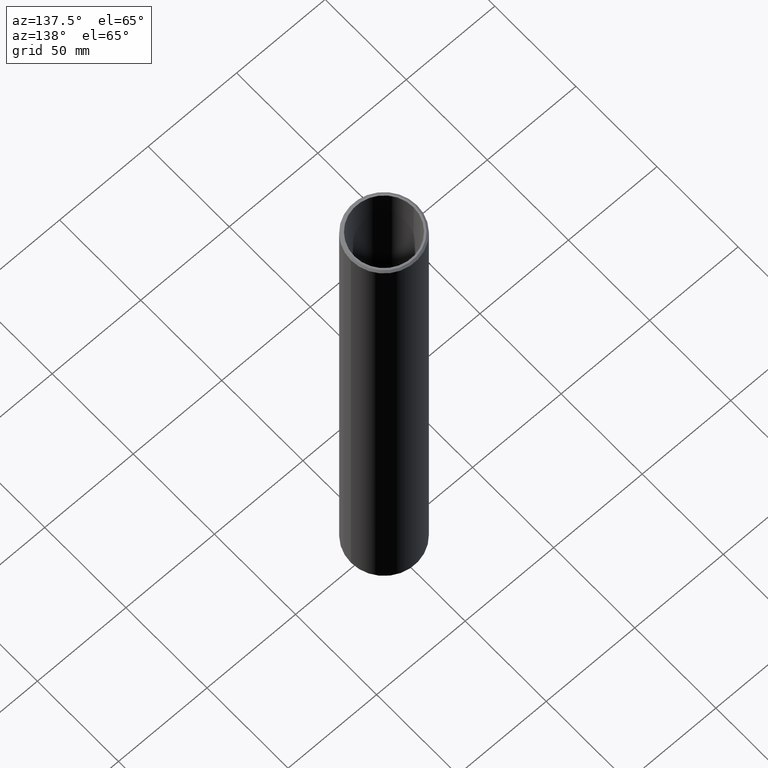
[diagram: clean part render]
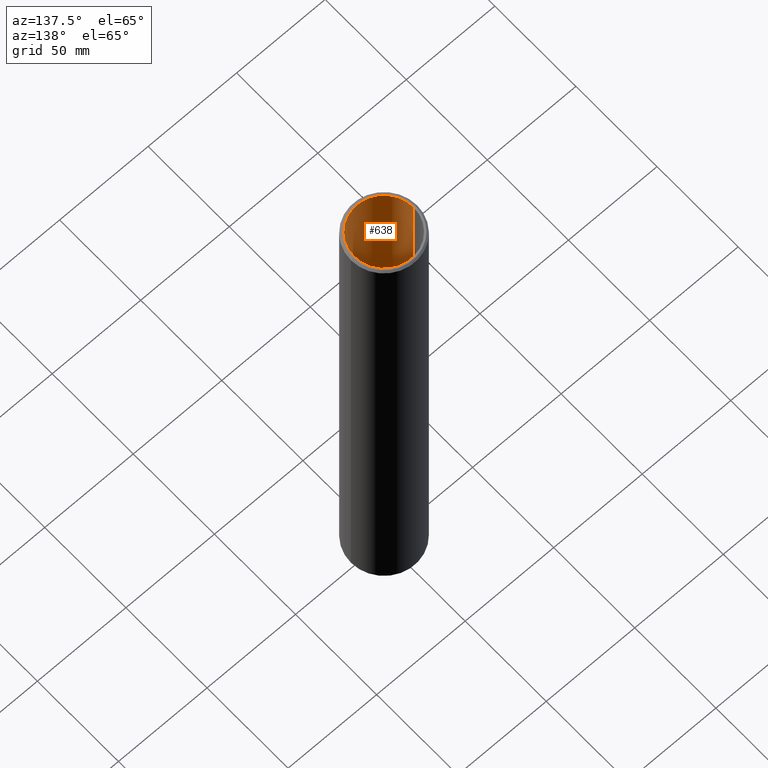
[diagram: same view with one face highlighted and labeled with its STEP entity id]
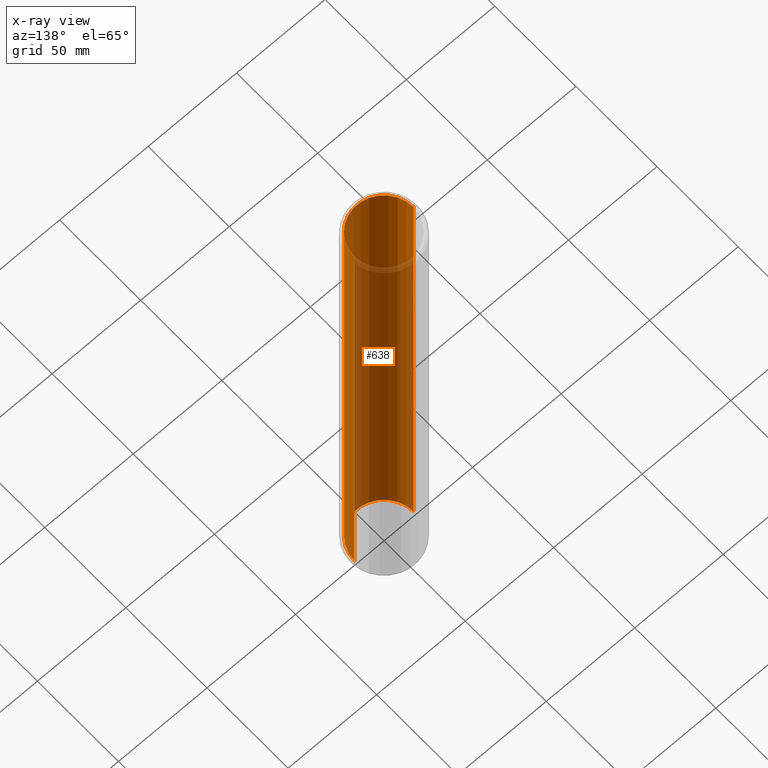
[diagram: x-ray of the same camera — body ghosted, the highlighted face saturated]
A machine part, auxiliary view. The second image highlights one B-rep face of the part: STEP entity #638.
The next image is the same camera in x-ray: the body ghosted, the highlighted face saturated — about 66% of this face is hidden behind the body in this view.
In plain terms, the highlighted cylindrical surface (partial cylindrical patch) has radius 16.7 mm, axis along (-0, -0, -1).
Its self-contained STEP definition (entity closure, byte-faithful):
#96 = LINE ( 'NONE', #5789, #12903 ) ;
#134 = EDGE_CURVE ( 'NONE', #845, #4097, #14150, .T. ) ;
#141 = VERTEX_POINT ( 'NONE', #3161 ) ;
#172 = CARTESIAN_POINT ( 'NONE',  ( -16.69999999999999900, -6.751536568721681500E-013, 1.473697182983843700 ) ) ;
#182 = EDGE_CURVE ( 'NONE', #1241, #14914, #5805, .T. ) ;
#189 = CARTESIAN_POINT ( 'NONE',  ( -16.69999999999999900, 0.0000000000000000000, 150.0000000000000000 ) ) ;
#205 = VERTEX_POINT ( 'NONE', #15674 ) ;
#212 = VERTEX_POINT ( 'NONE', #3433 ) ;
#222 = VERTEX_POINT ( 'NONE', #14367 ) ;
#251 = ORIENTED_EDGE ( 'NONE', *, *, #13809, .T. ) ;
#274 = VECTOR ( 'NONE', #8192, 1000.000000000000000 ) ;
#286 = CARTESIAN_POINT ( 'NONE',  ( -16.69999999999999900, 0.0000000000000000000, -2.925681089743548100 ) ) ;
#288 = ORIENTED_EDGE ( 'NONE', *, *, #11680, .T. ) ;
#292 = ORIENTED_EDGE ( 'NONE', *, *, #13453, .F. ) ;
#320 = B_SPLINE_CURVE_WITH_KNOTS ( 'NONE', 3,
 ( #6637, #6751, #4278, #6844 ),
 .UNSPECIFIED., .F., .F.,
 ( 4, 4 ),
 ( 0.0000000000000000000, 0.0001645194101132988000 ),
 .UNSPECIFIED. ) ;
#330 = VECTOR ( 'NONE', #12127, 1000.000000000000000 ) ;
#457 = VERTEX_POINT ( 'NONE', #3747 ) ;
#531 = DIRECTION ( 'NONE',  ( 0.0000000000000000000, 0.0000000000000000000, 1.000000000000000000 ) ) ;
#551 = CARTESIAN_POINT ( 'NONE',  ( -16.69996745311371500, -0.03298397858652268200, -0.6666851855487946300 ) ) ;
#584 = EDGE_CURVE ( 'NONE', #9750, #4725, #9059, .T. ) ;
#601 = B_SPLINE_CURVE_WITH_KNOTS ( 'NONE', 3,
 ( #11094, #4040, #5516, #1931 ),
 .UNSPECIFIED., .F., .F.,
 ( 4, 4 ),
 ( 0.0004003679278568054400, 0.0005426838302378694100 ),
 .UNSPECIFIED. ) ;
#625 = DIRECTION ( 'NONE',  ( 0.0000000000000000000, 0.0000000000000000000, 1.000000000000000000 ) ) ;
#636 = CARTESIAN_POINT ( 'NONE',  ( 0.0000000000000000000, 0.0000000000000000000, 150.0000000000000000 ) ) ;
#638 = ADVANCED_FACE ( 'NONE', ( #13354 ), #5518, .F. ) ;
#667 = EDGE_CURVE ( 'NONE', #14863, #8990, #15142, .T. ) ;
#707 = B_SPLINE_CURVE_WITH_KNOTS ( 'NONE', 3,
 ( #7917, #8014, #5425, #14260 ),
 .UNSPECIFIED., .F., .F.,
 ( 4, 4 ),
 ( 0.0007601544001610206100, 0.0009231642194032676600 ),
 .UNSPECIFIED. ) ;
#713 = DIRECTION ( 'NONE',  ( -0.0000000000000000000, -0.0000000000000000000, -1.000000000000000000 ) ) ;
#721 = B_SPLINE_CURVE_WITH_KNOTS ( 'NONE', 3,
 ( #8431, #12320, #8680, #2483 ),
 .UNSPECIFIED., .F., .F.,
 ( 4, 4 ),
 ( 0.0007601544001609855900, 0.0009231642194032195200 ),
 .UNSPECIFIED. ) ;
#724 = CARTESIAN_POINT ( 'NONE',  ( -16.69999999999999900, -9.698527246061738900E-017, -5.564657833323095400 ) ) ;
#778 = VERTEX_POINT ( 'NONE', #4611 ) ;
#807 = CARTESIAN_POINT ( 'NONE',  ( -16.69999999999998900, -0.02343688019446897200, 2.467734027492296500 ) ) ;
#842 = DIRECTION ( 'NONE',  ( -0.0000000000000000000, -0.0000000000000000000, -1.000000000000000000 ) ) ;
#845 = VERTEX_POINT ( 'NONE', #7348 ) ;
#862 = ORIENTED_EDGE ( 'NONE', *, *, #7933, .F. ) ;
#938 = CARTESIAN_POINT ( 'NONE',  ( -16.70000000000000600, -0.01193490576684025700, 10.86233208407259300 ) ) ;
#1011 = EDGE_CURVE ( 'NONE', #8106, #2994, #8072, .T. ) ;
#1013 = CARTESIAN_POINT ( 'NONE',  ( -16.70000000000000600, 9.825582188149885200E-017, 2.165595087786008000 ) ) ;
#1093 = VERTEX_POINT ( 'NONE', #8437 ) ;
#1137 = EDGE_CURVE ( 'NONE', #457, #11837, #1323, .T. ) ;
#1147 = CARTESIAN_POINT ( 'NONE',  ( -16.69999999999999900, 0.0000000000000000000, 5.317107371794915800 ) ) ;
#1169 = LINE ( 'NONE', #10265, #5246 ) ;
#1170 = VERTEX_POINT ( 'NONE', #9619 ) ;
#1204 = ORIENTED_EDGE ( 'NONE', *, *, #14542, .T. ) ;
#1221 = ORIENTED_EDGE ( 'NONE', *, *, #1011, .T. ) ;
#1241 = VERTEX_POINT ( 'NONE', #15798 ) ;
#1262 = VECTOR ( 'NONE', #9551, 1000.000000000000000 ) ;
#1301 = EDGE_CURVE ( 'NONE', #11919, #11891, #2074, .T. ) ;
#1308 = EDGE_CURVE ( 'NONE', #6605, #10942, #6571, .T. ) ;
#1323 = B_SPLINE_CURVE_WITH_KNOTS ( 'NONE', 3,
 ( #2197, #14638, #7385, #12362 ),
 .UNSPECIFIED., .F., .F.,
 ( 4, 4 ),
 ( 0.0003122497290092718000, 0.0004517219821183873600 ),
 .UNSPECIFIED. ) ;
#1377 = CARTESIAN_POINT ( 'NONE',  ( -16.69999249357679400, -0.01587137687383443800, 6.174043061983315500 ) ) ;
#1398 = CARTESIAN_POINT ( 'NONE',  ( -16.69999999999998900, -4.735020054269944400E-014, 6.082844359307565600 ) ) ;
#1416 = CARTESIAN_POINT ( 'NONE',  ( -16.69999999999999900, 0.0000000000000000000, 150.0000000000000000 ) ) ;
#1476 = VERTEX_POINT ( 'NONE', #11943 ) ;
#1493 = EDGE_CURVE ( 'NONE', #2224, #12960, #15300, .T. ) ;
#1526 = CARTESIAN_POINT ( 'NONE',  ( -16.69999999999999900, 0.0000000000000000000, 7.080996260683802400 ) ) ;
#1549 = CARTESIAN_POINT ( 'NONE',  ( -16.69996554995901800, -0.03392094017094016800, -5.403234758947636600 ) ) ;
#1604 = CARTESIAN_POINT ( 'NONE',  ( -16.69999999999999900, 0.0000000000000000000, -150.0000000000000000 ) ) ;
#1654 = VECTOR ( 'NONE', #4181, 1000.000000000000000 ) ;
#1655 = CARTESIAN_POINT ( 'NONE',  ( -16.69999138749641800, -0.01696047008547008800, 10.76698342347756200 ) ) ;
#1676 = LINE ( 'NONE', #4029, #14873 ) ;
#1681 = ORIENTED_EDGE ( 'NONE', *, *, #9485, .T. ) ;
#1718 = CARTESIAN_POINT ( 'NONE',  ( -16.70000000000000600, 9.825582188149885200E-017, 2.165595087786008000 ) ) ;
#1726 = VECTOR ( 'NONE', #7501, 1000.000000000000000 ) ;
#1731 = EDGE_CURVE ( 'NONE', #12122, #1093, #13524, .T. ) ;
#1817 = EDGE_CURVE ( 'NONE', #12572, #9779, #8664, .T. ) ;
#1823 = CARTESIAN_POINT ( 'NONE',  ( -16.69999999999999900, 0.0000000000000000000, 150.0000000000000000 ) ) ;
#1865 = DIRECTION ( 'NONE',  ( 0.0000000000000000000, 0.0000000000000000000, 1.000000000000000000 ) ) ;
#1914 = EDGE_CURVE ( 'NONE', #11644, #1170, #12361, .T. ) ;
#1931 = CARTESIAN_POINT ( 'NONE',  ( -16.69999138749641800, -0.01696047008547008800, 10.76698342347756200 ) ) ;
#2012 = VERTEX_POINT ( 'NONE', #12635 ) ;
#2032 = ORIENTED_EDGE ( 'NONE', *, *, #10142, .F. ) ;
#2074 = LINE ( 'NONE', #7538, #10040 ) ;
#2090 = VECTOR ( 'NONE', #842, 1000.000000000000000 ) ;
#2133 = EDGE_CURVE ( 'NONE', #15490, #15474, #6687, .T. ) ;
#2138 = CARTESIAN_POINT ( 'NONE',  ( -16.69999999999999900, 0.0000000000000000000, 150.0000000000000000 ) ) ;
#2197 = CARTESIAN_POINT ( 'NONE',  ( -16.70000000000000600, -4.681678154416606800E-014, 9.050926624264814500 ) ) ;
#2202 = CARTESIAN_POINT ( 'NONE',  ( -16.69999999999999200, 7.857620566850080000E-012, 10.90823966026532500 ) ) ;
#2219 = CARTESIAN_POINT ( 'NONE',  ( -16.69996554995901800, -0.03392094017094016800, -9.676213191105770100 ) ) ;
#2224 = VERTEX_POINT ( 'NONE', #14623 ) ;
#2234 = CARTESIAN_POINT ( 'NONE',  ( -16.69999999999999900, 0.0000000000000000000, 150.0000000000000000 ) ) ;
#2249 = B_SPLINE_CURVE_WITH_KNOTS ( 'NONE', 3,
 ( #14044, #8943, #2740, #6631 ),
 .UNSPECIFIED., .F., .F.,
 ( 4, 4 ),
 ( 0.0005409006475432117300, 0.0007297867420576923700 ),
 .UNSPECIFIED. ) ;
#2341 = CARTESIAN_POINT ( 'NONE',  ( -16.69999999999998900, -0.02342405405018298900, 2.224729526629875700 ) ) ;
#2432 = ORIENTED_EDGE ( 'NONE', *, *, #8529, .T. ) ;
#2448 = VERTEX_POINT ( 'NONE', #9189 ) ;
#2473 = VECTOR ( 'NONE', #531, 1000.000000000000000 ) ;
#2483 = CARTESIAN_POINT ( 'NONE',  ( -16.69996554995901800, -0.03392094017094016800, 1.313111394898589100 ) ) ;
#2555 = ORIENTED_EDGE ( 'NONE', *, *, #8899, .T. ) ;
#2582 = ORIENTED_EDGE ( 'NONE', *, *, #12365, .F. ) ;
#2614 = CIRCLE ( 'NONE', #4437, 16.69999999999999900 ) ;
#2636 = LINE ( 'NONE', #7459, #8429 ) ;
#2643 = ORIENTED_EDGE ( 'NONE', *, *, #15525, .T. ) ;
#2647 = CARTESIAN_POINT ( 'NONE',  ( -16.69996554995901800, -0.03392094017094016800, 1.313111394898589100 ) ) ;
#2667 = VECTOR ( 'NONE', #7904, 1000.000000000000000 ) ;
#2740 = CARTESIAN_POINT ( 'NONE',  ( -16.69996672781216400, -0.03334105922174618300, -8.091340870103234600 ) ) ;
#2809 = CARTESIAN_POINT ( 'NONE',  ( -16.69999999999999900, 0.0000000000000000000, 7.623731303418840500 ) ) ;
#2812 = VERTEX_POINT ( 'NONE', #724 ) ;
#2863 = B_SPLINE_CURVE_WITH_KNOTS ( 'NONE', 3,
 ( #9494, #10890, #10788, #11988 ),
 .UNSPECIFIED., .F., .F.,
 ( 4, 4 ),
 ( 0.0000000000000000000, 0.0001354148056495601800 ),
 .UNSPECIFIED. ) ;
#2911 = CARTESIAN_POINT ( 'NONE',  ( -16.69996554995901800, -0.03392094017094017500, -8.027337489983974500 ) ) ;
#2994 = VERTEX_POINT ( 'NONE', #6850 ) ;
#3031 = CARTESIAN_POINT ( 'NONE',  ( -16.69999999999999900, 0.0000000000000000000, 150.0000000000000000 ) ) ;
#3064 = DIRECTION ( 'NONE',  ( -0.0000000000000000000, -0.0000000000000000000, -1.000000000000000000 ) ) ;
#3088 = EDGE_CURVE ( 'NONE', #13908, #4097, #7664, .T. ) ;
#3117 = CARTESIAN_POINT ( 'NONE',  ( -16.69999999999999900, 5.548530190328999400E-012, 6.355246872870711000 ) ) ;
#3161 = CARTESIAN_POINT ( 'NONE',  ( -16.69996554995901800, -0.03392094017094016800, -10.69490142561432800 ) ) ;
#3183 = VERTEX_POINT ( 'NONE', #14053 ) ;
#3194 = ORIENTED_EDGE ( 'NONE', *, *, #11034, .F. ) ;
#3201 = EDGE_CURVE ( 'NONE', #4777, #14500, #15464, .T. ) ;
#3202 = ORIENTED_EDGE ( 'NONE', *, *, #7349, .F. ) ;
#3225 = DIRECTION ( 'NONE',  ( -0.0000000000000000000, -0.0000000000000000000, -1.000000000000000000 ) ) ;
#3287 = LINE ( 'NONE', #9573, #14180 ) ;
#3359 = LINE ( 'NONE', #8152, #274 ) ;
#3393 = LINE ( 'NONE', #6446, #14660 ) ;
#3433 = CARTESIAN_POINT ( 'NONE',  ( -16.69999999999999900, -5.251716504842173300E-013, 2.520077129978074600 ) ) ;
#3440 = CARTESIAN_POINT ( 'NONE',  ( -16.69999999999999900, 0.0000000000000000000, 150.0000000000000000 ) ) ;
#3497 = DIRECTION ( 'NONE',  ( 0.0000000000000000000, 0.0000000000000000000, 1.000000000000000000 ) ) ;
#3548 = ORIENTED_EDGE ( 'NONE', *, *, #13778, .F. ) ;
#3594 = CARTESIAN_POINT ( 'NONE',  ( -16.69996672781216400, -0.03334105922174633600, 2.288466822204518400 ) ) ;
#3603 = DIRECTION ( 'NONE',  ( 1.000000000000000000, 0.0000000000000000000, 0.0000000000000000000 ) ) ;
#3612 = DIRECTION ( 'NONE',  ( -0.0000000000000000000, -0.0000000000000000000, -1.000000000000000000 ) ) ;
#3681 = CARTESIAN_POINT ( 'NONE',  ( -16.69996719821758200, -0.03310946911145969100, -11.76827406788231500 ) ) ;
#3747 = CARTESIAN_POINT ( 'NONE',  ( -16.70000000000000600, -4.681678154416606800E-014, 9.050926624264814500 ) ) ;
#3769 = LINE ( 'NONE', #7661, #8623 ) ;
#3904 = DIRECTION ( 'NONE',  ( -0.0000000000000000000, -0.0000000000000000000, -1.000000000000000000 ) ) ;
#3924 = VECTOR ( 'NONE', #12168, 1000.000000000000000 ) ;
#3939 = B_SPLINE_CURVE_WITH_KNOTS ( 'NONE', 3,
 ( #10556, #11702, #14164, #3117 ),
 .UNSPECIFIED., .F., .F.,
 ( 4, 4 ),
 ( 0.0000000000000000000, 0.0001354148056495230200 ),
 .UNSPECIFIED. ) ;
#3961 = CARTESIAN_POINT ( 'NONE',  ( -16.69996554995901800, -0.03392094017094016800, -0.7221450153578465900 ) ) ;
#3965 = VERTEX_POINT ( 'NONE', #12493 ) ;
#3967 = CARTESIAN_POINT ( 'NONE',  ( -16.69999999999999900, 0.0000000000000000000, 150.0000000000000000 ) ) ;
#3968 = CARTESIAN_POINT ( 'NONE',  ( -16.69996554995901800, -0.03392094017094016800, 2.352470202323778900 ) ) ;
#3983 = EDGE_CURVE ( 'NONE', #4525, #8095, #3769, .T. ) ;
#4007 = ORIENTED_EDGE ( 'NONE', *, *, #15189, .T. ) ;
#4020 = CARTESIAN_POINT ( 'NONE',  ( -16.69999999999999900, 0.0000000000000000000, 3.468416132478668900 ) ) ;
#4029 = CARTESIAN_POINT ( 'NONE',  ( -16.69999999999999900, 0.0000000000000000000, 150.0000000000000000 ) ) ;
#4038 = ORIENTED_EDGE ( 'NONE', *, *, #15661, .F. ) ;
#4040 = CARTESIAN_POINT ( 'NONE',  ( -16.69999999999999900, -0.01203960247758767800, 10.67029683776213200 ) ) ;
#4057 = CARTESIAN_POINT ( 'NONE',  ( -16.69996745311371500, -0.03298397858652261900, 1.368571224707640900 ) ) ;
#4065 = DIRECTION ( 'NONE',  ( 0.0000000000000000000, 0.0000000000000000000, 1.000000000000000000 ) ) ;
#4067 = VECTOR ( 'NONE', #11116, 1000.000000000000000 ) ;
#4083 = EDGE_CURVE ( 'NONE', #11919, #8095, #15444, .T. ) ;
#4097 = VERTEX_POINT ( 'NONE', #13129 ) ;
#4120 = VERTEX_POINT ( 'NONE', #4284 ) ;
#4168 = CARTESIAN_POINT ( 'NONE',  ( -16.70000000000000600, -0.02343688019446587800, -7.912073664815452800 ) ) ;
#4181 = DIRECTION ( 'NONE',  ( 0.0000000000000000000, 0.0000000000000000000, 1.000000000000000000 ) ) ;
#4214 = DIRECTION ( 'NONE',  ( -0.0000000000000000000, -0.0000000000000000000, -1.000000000000000000 ) ) ;
#4247 = DIRECTION ( 'NONE',  ( -1.000000000000000000, 0.0000000000000000000, 0.0000000000000000000 ) ) ;
#4278 = CARTESIAN_POINT ( 'NONE',  ( -16.69999999999999200, -0.02309534509019869500, -10.58411336330105700 ) ) ;
#4284 = CARTESIAN_POINT ( 'NONE',  ( -16.69999999999999900, 5.548530190328999400E-012, 6.355246872870711000 ) ) ;
#4304 = DIRECTION ( 'NONE',  ( -0.0000000000000000000, -0.0000000000000000000, -1.000000000000000000 ) ) ;
#4360 = ORIENTED_EDGE ( 'NONE', *, *, #14276, .F. ) ;
#4429 = VECTOR ( 'NONE', #6390, 1000.000000000000000 ) ;
#4437 = AXIS2_PLACEMENT_3D ( 'NONE', #12129, #3497, #3603 ) ;
#4478 = CARTESIAN_POINT ( 'NONE',  ( -16.69996787043194800, -0.03277852437029712300, 2.410140475212861700 ) ) ;
#4481 = EDGE_CURVE ( 'NONE', #2812, #13908, #15837, .T. ) ;
#4525 = VERTEX_POINT ( 'NONE', #6828 ) ;
#4565 = LINE ( 'NONE', #9401, #8248 ) ;
#4586 = EDGE_CURVE ( 'NONE', #2224, #11998, #11732, .T. ) ;
#4611 = CARTESIAN_POINT ( 'NONE',  ( -16.70000000000001000, -6.754452479642606500E-013, -11.55194384265733600 ) ) ;
#4615 = LINE ( 'NONE', #14217, #6779 ) ;
#4649 = EDGE_CURVE ( 'NONE', #11852, #2448, #1169, .T. ) ;
#4694 = DIRECTION ( 'NONE',  ( -0.0000000000000000000, -0.0000000000000000000, -1.000000000000000000 ) ) ;
#4725 = VERTEX_POINT ( 'NONE', #12165 ) ;
#4777 = VERTEX_POINT ( 'NONE', #10897 ) ;
#4780 = CARTESIAN_POINT ( 'NONE',  ( -16.69999999999999900, 0.0000000000000000000, 150.0000000000000000 ) ) ;
#4781 = LINE ( 'NONE', #12302, #7143 ) ;
#4805 = DIRECTION ( 'NONE',  ( 0.0000000000000000000, 0.0000000000000000000, 1.000000000000000000 ) ) ;
#4860 = CARTESIAN_POINT ( 'NONE',  ( 0.0000000000000000000, 0.0000000000000000000, -150.0000000000000000 ) ) ;
#4887 = EDGE_CURVE ( 'NONE', #15977, #14858, #11650, .T. ) ;
#4948 = ORIENTED_EDGE ( 'NONE', *, *, #8770, .T. ) ;
#4994 = VERTEX_POINT ( 'NONE', #9374 ) ;
#4999 = CARTESIAN_POINT ( 'NONE',  ( -16.69999999999999900, 0.0000000000000000000, 150.0000000000000000 ) ) ;
#5046 = EDGE_CURVE ( 'NONE', #845, #6329, #3287, .T. ) ;
#5067 = EDGE_CURVE ( 'NONE', #4525, #6607, #721, .T. ) ;
#5077 = CARTESIAN_POINT ( 'NONE',  ( -16.69996927189462700, -0.03208855592185742800, -9.739803298894338800 ) ) ;
#5106 = EDGE_CURVE ( 'NONE', #2012, #3965, #8858, .T. ) ;
#5118 = CARTESIAN_POINT ( 'NONE',  ( -16.69999999999999900, 0.0000000000000000000, 150.0000000000000000 ) ) ;
#5199 = VERTEX_POINT ( 'NONE', #12221 ) ;
#5223 = CARTESIAN_POINT ( 'NONE',  ( -16.69999999999999900, -0.01155977179730570600, 6.127740236591248100 ) ) ;
#5228 = CARTESIAN_POINT ( 'NONE',  ( -16.69999999999999900, 0.0000000000000000000, -3.824586004273461600 ) ) ;
#5229 = VECTOR ( 'NONE', #15207, 1000.000000000000000 ) ;
#5246 = VECTOR ( 'NONE', #5327, 1000.000000000000000 ) ;
#5327 = DIRECTION ( 'NONE',  ( -0.0000000000000000000, -0.0000000000000000000, -1.000000000000000000 ) ) ;
#5364 = ORIENTED_EDGE ( 'NONE', *, *, #9671, .F. ) ;
#5383 = VECTOR ( 'NONE', #4694, 1000.000000000000000 ) ;
#5417 = CARTESIAN_POINT ( 'NONE',  ( -16.69999999999999900, 0.0000000000000000000, 150.0000000000000000 ) ) ;
#5425 = CARTESIAN_POINT ( 'NONE',  ( -16.69996719821758900, -0.03310946911145968400, -10.75064586275405400 ) ) ;
#5443 = VECTOR ( 'NONE', #13675, 1000.000000000000000 ) ;
#5452 = CARTESIAN_POINT ( 'NONE',  ( -16.69996554995901800, -0.03392094017094017500, -8.027337489983974500 ) ) ;
#5492 = CARTESIAN_POINT ( 'NONE',  ( -16.69999999999999900, -0.02383153916786754200, -9.550937064983964200 ) ) ;
#5506 = VERTEX_POINT ( 'NONE', #8660 ) ;
#5510 = ORIENTED_EDGE ( 'NONE', *, *, #9649, .F. ) ;
#5516 = CARTESIAN_POINT ( 'NONE',  ( -16.69999238338286300, -0.01597987844934635100, 10.71846565178677600 ) ) ;
#5518 = CYLINDRICAL_SURFACE ( 'NONE', #7852, 16.69999999999999900 ) ;
#5525 = ORIENTED_EDGE ( 'NONE', *, *, #1137, .T. ) ;
#5560 = VERTEX_POINT ( 'NONE', #7841 ) ;
#5727 = ORIENTED_EDGE ( 'NONE', *, *, #13558, .T. ) ;
#5782 = VECTOR ( 'NONE', #625, 1000.000000000000000 ) ;
#5783 = ORIENTED_EDGE ( 'NONE', *, *, #1731, .T. ) ;
#5789 = CARTESIAN_POINT ( 'NONE',  ( -16.69999999999999900, 0.0000000000000000000, 150.0000000000000000 ) ) ;
#5805 = LINE ( 'NONE', #9555, #2090 ) ;
#5923 = ORIENTED_EDGE ( 'NONE', *, *, #3088, .T. ) ;
#5927 = DIRECTION ( 'NONE',  ( 0.0000000000000000000, 0.0000000000000000000, 1.000000000000000000 ) ) ;
#5928 = VERTEX_POINT ( 'NONE', #1655 ) ;
#5932 = EDGE_CURVE ( 'NONE', #6605, #2994, #12219, .T. ) ;
#5950 = CARTESIAN_POINT ( 'NONE',  ( -16.69999999999999900, 0.0000000000000000000, 4.587807158119683300 ) ) ;
#5960 = EDGE_CURVE ( 'NONE', #8424, #4120, #6414, .T. ) ;
#5991 = ORIENTED_EDGE ( 'NONE', *, *, #7203, .F. ) ;
#6089 = CARTESIAN_POINT ( 'NONE',  ( -16.69999999999999200, -7.280248181650710400E-016, -11.87395270511804300 ) ) ;
#6118 = CARTESIAN_POINT ( 'NONE',  ( -16.69996745311371500, -0.03298397858652281400, -11.65706980093353800 ) ) ;
#6119 = ORIENTED_EDGE ( 'NONE', *, *, #11004, .F. ) ;
#6122 = ORIENTED_EDGE ( 'NONE', *, *, #667, .T. ) ;
#6154 = B_SPLINE_CURVE_WITH_KNOTS ( 'NONE', 3,
 ( #7049, #4478, #807, #12033 ),
 .UNSPECIFIED., .F., .F.,
 ( 4, 4 ),
 ( 0.0000000000000000000, 0.0001713056973771766900 ),
 .UNSPECIFIED. ) ;
#6159 = ORIENTED_EDGE ( 'NONE', *, *, #11361, .T. ) ;
#6188 = VERTEX_POINT ( 'NONE', #12803 ) ;
#6221 = AXIS2_PLACEMENT_3D ( 'NONE', #4860, #13554, #14800 ) ;
#6226 = CARTESIAN_POINT ( 'NONE',  ( -16.69999999999999900, 0.0000000000000000000, 150.0000000000000000 ) ) ;
#6245 = CARTESIAN_POINT ( 'NONE',  ( -16.69996554995901800, -0.03392094017094016800, -9.676213191105770100 ) ) ;
#6269 = CARTESIAN_POINT ( 'NONE',  ( -16.69999138749641800, -0.01696047008547008400, 6.220782418536361800 ) ) ;
#6329 = VERTEX_POINT ( 'NONE', #7250 ) ;
#6390 = DIRECTION ( 'NONE',  ( -0.0000000000000000000, -0.0000000000000000000, -1.000000000000000000 ) ) ;
#6414 = LINE ( 'NONE', #6547, #5229 ) ;
#6446 = CARTESIAN_POINT ( 'NONE',  ( 16.69999999999999900, 2.045160154576079800E-015, 150.0000000000000000 ) ) ;
#6465 = B_SPLINE_CURVE_WITH_KNOTS ( 'NONE', 3,
 ( #10052, #5223, #1377, #6269 ),
 .UNSPECIFIED., .F., .F.,
 ( 4, 4 ),
 ( 0.0003122497290092698500, 0.0004517219821183805800 ),
 .UNSPECIFIED. ) ;
#6487 = CARTESIAN_POINT ( 'NONE',  ( -16.69999999999999900, 0.0000000000000000000, 150.0000000000000000 ) ) ;
#6532 = VECTOR ( 'NONE', #9623, 1000.000000000000000 ) ;
#6547 = CARTESIAN_POINT ( 'NONE',  ( -16.69999999999999900, 0.0000000000000000000, 150.0000000000000000 ) ) ;
#6571 = LINE ( 'NONE', #5118, #11210 ) ;
#6605 = VERTEX_POINT ( 'NONE', #10790 ) ;
#6607 = VERTEX_POINT ( 'NONE', #14559 ) ;
#6618 = CARTESIAN_POINT ( 'NONE',  ( -16.69999999999999900, 0.0000000000000000000, 150.0000000000000000 ) ) ;
#6631 = CARTESIAN_POINT ( 'NONE',  ( -16.69996554995901800, -0.03392094017094017500, -8.027337489983974500 ) ) ;
#6637 = CARTESIAN_POINT ( 'NONE',  ( -16.69996554995901800, -0.03392094017094016800, -10.69490142561432800 ) ) ;
#6644 = CARTESIAN_POINT ( 'NONE',  ( -16.69999999999999900, 0.0000000000000000000, 5.707198183760725700 ) ) ;
#6685 = CARTESIAN_POINT ( 'NONE',  ( -16.70000000000000600, -5.251233696062238300E-013, -7.859730562329677800 ) ) ;
#6687 = B_SPLINE_CURVE_WITH_KNOTS ( 'NONE', 3,
 ( #1013, #2341, #3594, #13421 ),
 .UNSPECIFIED., .F., .F.,
 ( 4, 4 ),
 ( 0.0005409006475431877700, 0.0007297867420576463000 ),
 .UNSPECIFIED. ) ;
#6694 = CARTESIAN_POINT ( 'NONE',  ( -16.69996554995901800, -0.03392094017094016800, -9.676213191105770100 ) ) ;
#6705 = CARTESIAN_POINT ( 'NONE',  ( -16.69999999999999200, -0.02204698990980449200, -0.8333551190680791300 ) ) ;
#6751 = CARTESIAN_POINT ( 'NONE',  ( -16.69996745311371500, -0.03298397858652281400, -10.63944159580527700 ) ) ;
#6779 = VECTOR ( 'NONE', #713, 1000.000000000000000 ) ;
#6795 = CARTESIAN_POINT ( 'NONE',  ( -16.69999999999999900, 0.0000000000000000000, 150.0000000000000000 ) ) ;
#6806 = CARTESIAN_POINT ( 'NONE',  ( -16.69999999999999900, 0.0000000000000000000, 150.0000000000000000 ) ) ;
#6828 = CARTESIAN_POINT ( 'NONE',  ( -16.69999999999999900, -3.578714202149418900E-016, 1.151688320523131200 ) ) ;
#6844 = CARTESIAN_POINT ( 'NONE',  ( -16.70000000000001000, -6.753150166486203000E-013, -10.53431563752907400 ) ) ;
#6850 = CARTESIAN_POINT ( 'NONE',  ( -16.70000000000000600, -5.251233696062238300E-013, -7.859730562329677800 ) ) ;
#6882 = ORIENTED_EDGE ( 'NONE', *, *, #12883, .T. ) ;
#6885 = DIRECTION ( 'NONE',  ( -0.0000000000000000000, -0.0000000000000000000, -1.000000000000000000 ) ) ;
#6888 = CARTESIAN_POINT ( 'NONE',  ( -16.70000000000001000, -6.753150166486203000E-013, -10.53431563752907400 ) ) ;
#6910 = EDGE_CURVE ( 'NONE', #457, #6188, #14923, .T. ) ;
#6985 = DIRECTION ( 'NONE',  ( 0.0000000000000000000, 0.0000000000000000000, 1.000000000000000000 ) ) ;
#7049 = CARTESIAN_POINT ( 'NONE',  ( -16.69996554995901800, -0.03392094017094016800, 2.352470202323778900 ) ) ;
#7085 = ORIENTED_EDGE ( 'NONE', *, *, #3201, .T. ) ;
#7093 = VECTOR ( 'NONE', #4304, 1000.000000000000000 ) ;
#7143 = VECTOR ( 'NONE', #3612, 1000.000000000000000 ) ;
#7166 = VECTOR ( 'NONE', #9210, 1000.000000000000000 ) ;
#7194 = ORIENTED_EDGE ( 'NONE', *, *, #4083, .T. ) ;
#7203 = EDGE_CURVE ( 'NONE', #15977, #14500, #7556, .T. ) ;
#7244 = EDGE_CURVE ( 'NONE', #15381, #8106, #2249, .T. ) ;
#7250 = CARTESIAN_POINT ( 'NONE',  ( -16.69999999999999900, 0.0000000000000000000, -4.570846688034160700 ) ) ;
#7256 = ORIENTED_EDGE ( 'NONE', *, *, #3983, .F. ) ;
#7287 = ORIENTED_EDGE ( 'NONE', *, *, #1301, .F. ) ;
#7306 = VERTEX_POINT ( 'NONE', #15622 ) ;
#7313 = CARTESIAN_POINT ( 'NONE',  ( -16.69996554995901800, -0.03392094017094016800, -5.403234758947636600 ) ) ;
#7340 = CARTESIAN_POINT ( 'NONE',  ( -16.69999252396562600, -0.01584145475487255800, 10.81491910063210300 ) ) ;
#7348 = CARTESIAN_POINT ( 'NONE',  ( -16.69999999999999900, 0.0000000000000000000, -4.689569978632457400 ) ) ;
#7349 = EDGE_CURVE ( 'NONE', #9750, #1093, #4615, .T. ) ;
#7385 = CARTESIAN_POINT ( 'NONE',  ( -16.69999249357679400, -0.01587137687383426500, 9.142125326940565300 ) ) ;
#7394 = CARTESIAN_POINT ( 'NONE',  ( -16.69999999999999200, 5.558240364278085900E-012, 9.323329137827999000 ) ) ;
#7417 = CARTESIAN_POINT ( 'NONE',  ( -16.69996719821757500, -0.03310946911145996900, -5.458979196087363500 ) ) ;
#7429 = CARTESIAN_POINT ( 'NONE',  ( -16.69999999999999900, -2.356339780143056800E-015, -9.862490476322520300 ) ) ;
#7459 = CARTESIAN_POINT ( 'NONE',  ( -16.69999999999999900, 0.0000000000000000000, 150.0000000000000000 ) ) ;
#7488 = LINE ( 'NONE', #6226, #7865 ) ;
#7501 = DIRECTION ( 'NONE',  ( -0.0000000000000000000, -0.0000000000000000000, -1.000000000000000000 ) ) ;
#7538 = CARTESIAN_POINT ( 'NONE',  ( -16.69999999999999900, 0.0000000000000000000, 150.0000000000000000 ) ) ;
#7556 = LINE ( 'NONE', #15083, #1726 ) ;
#7661 = CARTESIAN_POINT ( 'NONE',  ( -16.69999999999999900, 0.0000000000000000000, 150.0000000000000000 ) ) ;
#7663 = CARTESIAN_POINT ( 'NONE',  ( -16.69999138749641800, -0.01696047008547008400, 9.188864683493614300 ) ) ;
#7664 = B_SPLINE_CURVE_WITH_KNOTS ( 'NONE', 3,
 ( #16023, #8601, #13501, #12255 ),
 .UNSPECIFIED., .F., .F.,
 ( 4, 4 ),
 ( 0.0000000000000000000, 0.0001645194101133007800 ),
 .UNSPECIFIED. ) ;
#7731 = EDGE_CURVE ( 'NONE', #222, #5928, #601, .T. ) ;
#7767 = ORIENTED_EDGE ( 'NONE', *, *, #4481, .T. ) ;
#7841 = CARTESIAN_POINT ( 'NONE',  ( -16.70000000000000600, 4.798441646195611400E-016, -10.85632449998978500 ) ) ;
#7852 = AXIS2_PLACEMENT_3D ( 'NONE', #636, #9449, #4247 ) ;
#7865 = VECTOR ( 'NONE', #8744, 1000.000000000000000 ) ;
#7873 = ORIENTED_EDGE ( 'NONE', *, *, #15759, .F. ) ;
#7904 = DIRECTION ( 'NONE',  ( 0.0000000000000000000, 0.0000000000000000000, 1.000000000000000000 ) ) ;
#7917 = CARTESIAN_POINT ( 'NONE',  ( -16.70000000000000600, 4.798441646195611400E-016, -10.85632449998978500 ) ) ;
#7933 = EDGE_CURVE ( 'NONE', #14863, #4994, #11416, .T. ) ;
#7943 = CARTESIAN_POINT ( 'NONE',  ( -16.69999999999999900, 0.0000000000000000000, 150.0000000000000000 ) ) ;
#7976 = VERTEX_POINT ( 'NONE', #286 ) ;
#7985 = CARTESIAN_POINT ( 'NONE',  ( -16.69999999999999200, -6.750803885222306600E-013, -0.5615592272725916700 ) ) ;
#8014 = CARTESIAN_POINT ( 'NONE',  ( -16.70000000000000600, -0.02204698990980361700, -10.80611152932455900 ) ) ;
#8022 = VERTEX_POINT ( 'NONE', #5228 ) ;
#8029 = DIRECTION ( 'NONE',  ( 0.0000000000000000000, 0.0000000000000000000, 1.000000000000000000 ) ) ;
#8043 = VERTEX_POINT ( 'NONE', #4020 ) ;
#8046 = DIRECTION ( 'NONE',  ( 0.0000000000000000000, 0.0000000000000000000, 1.000000000000000000 ) ) ;
#8072 = B_SPLINE_CURVE_WITH_KNOTS ( 'NONE', 3,
 ( #2911, #11614, #4168, #6685 ),
 .UNSPECIFIED., .F., .F.,
 ( 4, 4 ),
 ( 1.756830462118029100E-018, 0.0001713056973771767200 ),
 .UNSPECIFIED. ) ;
#8080 = VECTOR ( 'NONE', #10106, 1000.000000000000000 ) ;
#8095 = VERTEX_POINT ( 'NONE', #10273 ) ;
#8106 = VERTEX_POINT ( 'NONE', #5452 ) ;
#8124 = CARTESIAN_POINT ( 'NONE',  ( -16.69999999999999900, 0.0000000000000000000, 150.0000000000000000 ) ) ;
#8126 = EDGE_CURVE ( 'NONE', #12572, #1170, #11221, .T. ) ;
#8129 = VECTOR ( 'NONE', #12665, 1000.000000000000000 ) ;
#8152 = CARTESIAN_POINT ( 'NONE',  ( -16.69999999999999900, 0.0000000000000000000, 150.0000000000000000 ) ) ;
#8192 = DIRECTION ( 'NONE',  ( -0.0000000000000000000, -0.0000000000000000000, -1.000000000000000000 ) ) ;
#8195 = CARTESIAN_POINT ( 'NONE',  ( 16.69999999999999900, 2.045160154576079800E-015, 150.0000000000000000 ) ) ;
#8248 = VECTOR ( 'NONE', #14360, 1000.000000000000000 ) ;
#8253 = CARTESIAN_POINT ( 'NONE',  ( -16.69999999999999900, 0.0000000000000000000, 8.285189636752177100 ) ) ;
#8345 = EDGE_CURVE ( 'NONE', #6607, #1476, #11402, .T. ) ;
#8358 = CARTESIAN_POINT ( 'NONE',  ( -16.69999999999999900, 0.0000000000000000000, 150.0000000000000000 ) ) ;
#8375 = CARTESIAN_POINT ( 'NONE',  ( -16.69999999999999900, 0.0000000000000000000, 150.0000000000000000 ) ) ;
#8404 = ORIENTED_EDGE ( 'NONE', *, *, #11454, .T. ) ;
#8414 = CARTESIAN_POINT ( 'NONE',  ( -16.69999999999999900, 0.0000000000000000000, 150.0000000000000000 ) ) ;
#8424 = VERTEX_POINT ( 'NONE', #15531 ) ;
#8429 = VECTOR ( 'NONE', #14888, 1000.000000000000000 ) ;
#8431 = CARTESIAN_POINT ( 'NONE',  ( -16.69999999999999900, -3.578714202149418900E-016, 1.151688320523131200 ) ) ;
#8437 = CARTESIAN_POINT ( 'NONE',  ( -16.69999999999999900, 0.0000000000000000000, -1.925013354700813300 ) ) ;
#8476 = EDGE_CURVE ( 'NONE', #15474, #212, #6154, .T. ) ;
#8529 = EDGE_CURVE ( 'NONE', #11644, #14914, #12603, .T. ) ;
#8552 = DIRECTION ( 'NONE',  ( -0.0000000000000000000, -0.0000000000000000000, -1.000000000000000000 ) ) ;
#8601 = CARTESIAN_POINT ( 'NONE',  ( -16.69996745311371500, -0.03298397858652260500, -5.347774929138584100 ) ) ;
#8614 = CARTESIAN_POINT ( 'NONE',  ( -16.69999999999999200, -0.02204698990980292300, -11.82373973445281700 ) ) ;
#8623 = VECTOR ( 'NONE', #3904, 1000.000000000000000 ) ;
#8625 = ORIENTED_EDGE ( 'NONE', *, *, #7244, .T. ) ;
#8660 = CARTESIAN_POINT ( 'NONE',  ( -16.69999999999999900, -5.188034450285226900E-014, -9.492825936733362700 ) ) ;
#8662 = VECTOR ( 'NONE', #6885, 1000.000000000000000 ) ;
#8664 = LINE ( 'NONE', #10838, #12752 ) ;
#8680 = CARTESIAN_POINT ( 'NONE',  ( -16.69996719821758900, -0.03310946911145994100, 1.257366957758863100 ) ) ;
#8744 = DIRECTION ( 'NONE',  ( 0.0000000000000000000, 0.0000000000000000000, 1.000000000000000000 ) ) ;
#8770 = EDGE_CURVE ( 'NONE', #13375, #15586, #14102, .T. ) ;
#8796 = VERTEX_POINT ( 'NONE', #1398 ) ;
#8858 = B_SPLINE_CURVE_WITH_KNOTS ( 'NONE', 3,
 ( #6089, #8614, #3681, #12432 ),
 .UNSPECIFIED., .F., .F.,
 ( 4, 4 ),
 ( 0.0007601544001610140000, 0.0009231642194032547600 ),
 .UNSPECIFIED. ) ;
#8899 = EDGE_CURVE ( 'NONE', #8043, #5199, #10453, .T. ) ;
#8932 = B_SPLINE_CURVE_WITH_KNOTS ( 'NONE', 3,
 ( #12084, #7340, #938, #2202 ),
 .UNSPECIFIED., .F., .F.,
 ( 4, 4 ),
 ( 1.763108388298593500E-018, 0.0001419623447272140700 ),
 .UNSPECIFIED. ) ;
#8933 = CARTESIAN_POINT ( 'NONE',  ( -16.69999999999999900, 0.0000000000000000000, 150.0000000000000000 ) ) ;
#8943 = CARTESIAN_POINT ( 'NONE',  ( -16.70000000000000600, -0.02342405405018049100, -8.155078165677879900 ) ) ;
#8972 = VECTOR ( 'NONE', #4214, 1000.000000000000000 ) ;
#8990 = VERTEX_POINT ( 'NONE', #12046 ) ;
#9059 = B_SPLINE_CURVE_WITH_KNOTS ( 'NONE', 3,
 ( #14138, #6705, #10322, #3961 ),
 .UNSPECIFIED., .F., .F.,
 ( 4, 4 ),
 ( 0.0007601544001609833200, 0.0009231642194032147500 ),
 .UNSPECIFIED. ) ;
#9100 = CARTESIAN_POINT ( 'NONE',  ( -16.69996554995901800, -0.03392094017094016800, -0.7221450153578465900 ) ) ;
#9124 = ORIENTED_EDGE ( 'NONE', *, *, #5932, .F. ) ;
#9189 = CARTESIAN_POINT ( 'NONE',  ( -16.69999999999999900, 0.0000000000000000000, 5.435830662393198200 ) ) ;
#9210 = DIRECTION ( 'NONE',  ( -0.0000000000000000000, -0.0000000000000000000, -1.000000000000000000 ) ) ;
#9217 = ORIENTED_EDGE ( 'NONE', *, *, #12673, .T. ) ;
#9232 = ORIENTED_EDGE ( 'NONE', *, *, #5067, .T. ) ;
#9260 = CARTESIAN_POINT ( 'NONE',  ( -16.69999999999999200, -6.750803885222306600E-013, -0.5615592272725916700 ) ) ;
#9297 = VECTOR ( 'NONE', #9481, 1000.000000000000000 ) ;
#9374 = CARTESIAN_POINT ( 'NONE',  ( -16.69999999999999200, 7.857620566850080000E-012, 10.90823966026532500 ) ) ;
#9401 = CARTESIAN_POINT ( 'NONE',  ( -16.69999999999999900, 0.0000000000000000000, 150.0000000000000000 ) ) ;
#9449 = DIRECTION ( 'NONE',  ( -0.0000000000000000000, -0.0000000000000000000, -1.000000000000000000 ) ) ;
#9481 = DIRECTION ( 'NONE',  ( 0.0000000000000000000, 0.0000000000000000000, 1.000000000000000000 ) ) ;
#9485 = EDGE_CURVE ( 'NONE', #8424, #9779, #11208, .T. ) ;
#9494 = CARTESIAN_POINT ( 'NONE',  ( -16.69999138749641800, -0.01696047008547008400, 9.188864683493614300 ) ) ;
#9522 = EDGE_CURVE ( 'NONE', #141, #11122, #320, .T. ) ;
#9551 = DIRECTION ( 'NONE',  ( -0.0000000000000000000, -0.0000000000000000000, -1.000000000000000000 ) ) ;
#9555 = CARTESIAN_POINT ( 'NONE',  ( -16.69999999999999900, 0.0000000000000000000, 150.0000000000000000 ) ) ;
#9573 = CARTESIAN_POINT ( 'NONE',  ( -16.69999999999999900, 0.0000000000000000000, 150.0000000000000000 ) ) ;
#9586 = LINE ( 'NONE', #6618, #7093 ) ;
#9619 = CARTESIAN_POINT ( 'NONE',  ( -16.69999999999999900, 0.0000000000000000000, 7.742454594017136300 ) ) ;
#9623 = DIRECTION ( 'NONE',  ( -0.0000000000000000000, -0.0000000000000000000, -1.000000000000000000 ) ) ;
#9649 = EDGE_CURVE ( 'NONE', #13375, #11122, #4781, .T. ) ;
#9671 = EDGE_CURVE ( 'NONE', #12131, #12184, #14319, .T. ) ;
#9750 = VERTEX_POINT ( 'NONE', #15132 ) ;
#9779 = VERTEX_POINT ( 'NONE', #1526 ) ;
#9806 = LINE ( 'NONE', #8414, #10199 ) ;
#9832 = EDGE_CURVE ( 'NONE', #5560, #141, #707, .T. ) ;
#9938 = ORIENTED_EDGE ( 'NONE', *, *, #10221, .F. ) ;
#9989 = ORIENTED_EDGE ( 'NONE', *, *, #9832, .T. ) ;
#10040 = VECTOR ( 'NONE', #15060, 1000.000000000000000 ) ;
#10052 = CARTESIAN_POINT ( 'NONE',  ( -16.69999999999998900, -4.735020054269944400E-014, 6.082844359307565600 ) ) ;
#10079 = CARTESIAN_POINT ( 'NONE',  ( -16.69999999999999900, 0.0000000000000000000, 8.403912927350459600 ) ) ;
#10106 = DIRECTION ( 'NONE',  ( -0.0000000000000000000, -0.0000000000000000000, -1.000000000000000000 ) ) ;
#10142 = EDGE_CURVE ( 'NONE', #14795, #14858, #11965, .T. ) ;
#10199 = VECTOR ( 'NONE', #3225, 1000.000000000000000 ) ;
#10205 = VECTOR ( 'NONE', #13467, 1000.000000000000000 ) ;
#10221 = EDGE_CURVE ( 'NONE', #5560, #778, #12942, .T. ) ;
#10265 = CARTESIAN_POINT ( 'NONE',  ( -16.69999999999999900, 0.0000000000000000000, 150.0000000000000000 ) ) ;
#10273 = CARTESIAN_POINT ( 'NONE',  ( -16.69999999999999900, 0.0000000000000000000, 0.3307291666667092100 ) ) ;
#10293 = ORIENTED_EDGE ( 'NONE', *, *, #4649, .F. ) ;
#10322 = CARTESIAN_POINT ( 'NONE',  ( -16.69996719821758200, -0.03310946911145991300, -0.7778894524975725800 ) ) ;
#10387 = CARTESIAN_POINT ( 'NONE',  ( -16.69999999999999900, 0.0000000000000000000, -2.043736645299110100 ) ) ;
#10453 = LINE ( 'NONE', #5417, #2667 ) ;
#10485 = CARTESIAN_POINT ( 'NONE',  ( -16.69999999999999900, -5.188034450285226900E-014, -9.492825936733362700 ) ) ;
#10529 = B_SPLINE_CURVE_WITH_KNOTS ( 'NONE', 3,
 ( #14844, #6118, #13486, #14740 ),
 .UNSPECIFIED., .F., .F.,
 ( 4, 4 ),
 ( 0.0000000000000000000, 0.0001645194101132996500 ),
 .UNSPECIFIED. ) ;
#10556 = CARTESIAN_POINT ( 'NONE',  ( -16.69999138749641800, -0.01696047008547008400, 6.220782418536361800 ) ) ;
#10592 = LINE ( 'NONE', #6487, #8080 ) ;
#10598 = CARTESIAN_POINT ( 'NONE',  ( 16.69999999999999900, 2.045160154576079800E-015, -150.0000000000000000 ) ) ;
#10675 = CARTESIAN_POINT ( 'NONE',  ( -16.69999999999999900, 0.0000000000000000000, 0.2120058760684273600 ) ) ;
#10729 = CARTESIAN_POINT ( 'NONE',  ( -16.69999999999999900, 0.0000000000000000000, 150.0000000000000000 ) ) ;
#10781 = ORIENTED_EDGE ( 'NONE', *, *, #4586, .F. ) ;
#10788 = CARTESIAN_POINT ( 'NONE',  ( -16.69999999999999600, -0.01147758817041685600, 9.279487513247337600 ) ) ;
#10790 = CARTESIAN_POINT ( 'NONE',  ( -16.69999999999999900, 0.0000000000000000000, -7.488047542735021300 ) ) ;
#10823 = B_SPLINE_CURVE_WITH_KNOTS ( 'NONE', 3,
 ( #9100, #551, #14027, #9260 ),
 .UNSPECIFIED., .F., .F.,
 ( 4, 4 ),
 ( 1.103095790987067200E-019, 0.0001645194101133000500 ),
 .UNSPECIFIED. ) ;
#10838 = CARTESIAN_POINT ( 'NONE',  ( -16.69999999999999900, 0.0000000000000000000, 150.0000000000000000 ) ) ;
#10859 = EDGE_CURVE ( 'NONE', #8043, #212, #16068, .T. ) ;
#10890 = CARTESIAN_POINT ( 'NONE',  ( -16.69999264393184600, -0.01572333097818963400, 9.234429185796576800 ) ) ;
#10897 = CARTESIAN_POINT ( 'NONE',  ( -16.69999999999999900, 0.0000000000000000000, 4.197716346153873300 ) ) ;
#10942 = VERTEX_POINT ( 'NONE', #15899 ) ;
#11004 = EDGE_CURVE ( 'NONE', #2012, #12131, #9806, .T. ) ;
#11006 = CARTESIAN_POINT ( 'NONE',  ( -16.69999999999999900, 0.0000000000000000000, 10.04907852564104700 ) ) ;
#11015 = ORIENTED_EDGE ( 'NONE', *, *, #11747, .T. ) ;
#11016 = VECTOR ( 'NONE', #5927, 1000.000000000000000 ) ;
#11034 = EDGE_CURVE ( 'NONE', #15381, #5506, #10592, .T. ) ;
#11064 = ORIENTED_EDGE ( 'NONE', *, *, #2133, .T. ) ;
#11094 = CARTESIAN_POINT ( 'NONE',  ( -16.69999999999999900, -1.061763872666044000E-013, 10.62364270322657800 ) ) ;
#11116 = DIRECTION ( 'NONE',  ( -0.0000000000000000000, -0.0000000000000000000, -1.000000000000000000 ) ) ;
#11122 = VERTEX_POINT ( 'NONE', #6888 ) ;
#11208 = LINE ( 'NONE', #3031, #5782 ) ;
#11210 = VECTOR ( 'NONE', #12510, 1000.000000000000000 ) ;
#11221 = LINE ( 'NONE', #7943, #2473 ) ;
#11224 = CARTESIAN_POINT ( 'NONE',  ( -16.69999999999999900, 0.0000000000000000000, 11.94865117521370800 ) ) ;
#11307 = EDGE_CURVE ( 'NONE', #205, #13576, #2614, .T. ) ;
#11353 = CARTESIAN_POINT ( 'NONE',  ( -16.69999999999999900, 6.657678965418800700E-016, -8.214212604521744500 ) ) ;
#11361 = EDGE_CURVE ( 'NONE', #3965, #778, #10529, .T. ) ;
#11377 = ORIENTED_EDGE ( 'NONE', *, *, #6910, .F. ) ;
#11402 = B_SPLINE_CURVE_WITH_KNOTS ( 'NONE', 3,
 ( #2647, #4057, #12747, #172 ),
 .UNSPECIFIED., .F., .F.,
 ( 4, 4 ),
 ( 0.0000000000000000000, 0.0001645194101132994600 ),
 .UNSPECIFIED. ) ;
#11416 = LINE ( 'NONE', #189, #4429 ) ;
#11433 = ORIENTED_EDGE ( 'NONE', *, *, #5106, .T. ) ;
#11454 = EDGE_CURVE ( 'NONE', #13576, #12184, #3393, .T. ) ;
#11491 = LINE ( 'NONE', #8933, #8972 ) ;
#11495 = ORIENTED_EDGE ( 'NONE', *, *, #9522, .T. ) ;
#11512 = EDGE_LOOP ( 'NONE', ( #15017, #8404, #5364, #6119, #11433, #6159, #9938, #9989, #11495, #5510, #4948, #9217, #3194, #8625, #1221, #9124, #13183, #12865, #7767, #5923, #15842, #11531, #15649, #288, #2582, #5783, #3202, #11692, #14519, #7287, #7194, #7256, #9232, #12337, #4038, #11064, #12371, #13868, #2555, #7873, #7085, #5991, #14473, #2032, #5727, #10293, #2643, #4360, #11015, #4007, #11783, #1681, #15888, #13914, #11934, #2432, #11836, #251, #11377, #5525, #1204, #10781, #13523, #3548, #14339, #6882, #862, #6122, #292 ) ) ;
#11531 = ORIENTED_EDGE ( 'NONE', *, *, #5046, .T. ) ;
#11614 = CARTESIAN_POINT ( 'NONE',  ( -16.69996787043194800, -0.03277852437029733800, -7.969667217094890800 ) ) ;
#11644 = VERTEX_POINT ( 'NONE', #8253 ) ;
#11650 = LINE ( 'NONE', #1416, #5443 ) ;
#11680 = EDGE_CURVE ( 'NONE', #8022, #7976, #2636, .T. ) ;
#11692 = ORIENTED_EDGE ( 'NONE', *, *, #584, .T. ) ;
#11702 = CARTESIAN_POINT ( 'NONE',  ( -16.69999264393184600, -0.01572333097819004000, 6.266346920839313700 ) ) ;
#11732 = LINE ( 'NONE', #4999, #4067 ) ;
#11747 = EDGE_CURVE ( 'NONE', #8796, #3183, #6465, .T. ) ;
#11783 = ORIENTED_EDGE ( 'NONE', *, *, #5960, .F. ) ;
#11836 = ORIENTED_EDGE ( 'NONE', *, *, #182, .F. ) ;
#11837 = VERTEX_POINT ( 'NONE', #7663 ) ;
#11849 = CARTESIAN_POINT ( 'NONE',  ( -16.69999999999999900, 0.0000000000000000000, 150.0000000000000000 ) ) ;
#11852 = VERTEX_POINT ( 'NONE', #6644 ) ;
#11891 = VERTEX_POINT ( 'NONE', #7985 ) ;
#11919 = VERTEX_POINT ( 'NONE', #10675 ) ;
#11934 = ORIENTED_EDGE ( 'NONE', *, *, #1914, .F. ) ;
#11943 = CARTESIAN_POINT ( 'NONE',  ( -16.69999999999999900, -6.751536568721681500E-013, 1.473697182983843700 ) ) ;
#11965 = LINE ( 'NONE', #2138, #8662 ) ;
#11988 = CARTESIAN_POINT ( 'NONE',  ( -16.69999999999999200, 5.558240364278085900E-012, 9.323329137827999000 ) ) ;
#11998 = VERTEX_POINT ( 'NONE', #7394 ) ;
#12001 = CARTESIAN_POINT ( 'NONE',  ( -16.69999999999999900, 0.0000000000000000000, 150.0000000000000000 ) ) ;
#12033 = CARTESIAN_POINT ( 'NONE',  ( -16.69999999999999900, -5.251716504842173300E-013, 2.520077129978074600 ) ) ;
#12046 = CARTESIAN_POINT ( 'NONE',  ( -16.69999999999999900, 0.0000000000000000000, 12.06737446581199300 ) ) ;
#12084 = CARTESIAN_POINT ( 'NONE',  ( -16.69999138749641800, -0.01696047008547008800, 10.76698342347756200 ) ) ;
#12122 = VERTEX_POINT ( 'NONE', #10387 ) ;
#12127 = DIRECTION ( 'NONE',  ( -0.0000000000000000000, -0.0000000000000000000, -1.000000000000000000 ) ) ;
#12129 = CARTESIAN_POINT ( 'NONE',  ( 0.0000000000000000000, 0.0000000000000000000, 150.0000000000000000 ) ) ;
#12131 = VERTEX_POINT ( 'NONE', #1604 ) ;
#12165 = CARTESIAN_POINT ( 'NONE',  ( -16.69996554995901800, -0.03392094017094016800, -0.7221450153578465900 ) ) ;
#12168 = DIRECTION ( 'NONE',  ( -0.0000000000000000000, -0.0000000000000000000, -1.000000000000000000 ) ) ;
#12179 = EDGE_CURVE ( 'NONE', #8022, #6329, #1676, .T. ) ;
#12184 = VERTEX_POINT ( 'NONE', #10598 ) ;
#12199 = EDGE_CURVE ( 'NONE', #2812, #10942, #4565, .T. ) ;
#12219 = LINE ( 'NONE', #3967, #8129 ) ;
#12221 = CARTESIAN_POINT ( 'NONE',  ( -16.69999999999999900, 0.0000000000000000000, 3.587139423076959300 ) ) ;
#12255 = CARTESIAN_POINT ( 'NONE',  ( -16.70000000000001000, -6.749702742390878000E-013, -5.242648970862380700 ) ) ;
#12302 = CARTESIAN_POINT ( 'NONE',  ( -16.69999999999999900, 0.0000000000000000000, 150.0000000000000000 ) ) ;
#12306 = CARTESIAN_POINT ( 'NONE',  ( -16.69999999999999900, 0.0000000000000000000, 4.706530448717984400 ) ) ;
#12314 = B_SPLINE_CURVE_WITH_KNOTS ( 'NONE', 3,
 ( #6694, #14183, #5492, #10485 ),
 .UNSPECIFIED., .F., .F.,
 ( 4, 4 ),
 ( 0.0000000000000000000, 0.0001866059248851324100 ),
 .UNSPECIFIED. ) ;
#12320 = CARTESIAN_POINT ( 'NONE',  ( -16.69999999999999900, -0.02204698990980381900, 1.201901291188357100 ) ) ;
#12337 = ORIENTED_EDGE ( 'NONE', *, *, #8345, .T. ) ;
#12361 = LINE ( 'NONE', #8375, #5383 ) ;
#12362 = CARTESIAN_POINT ( 'NONE',  ( -16.69999138749641800, -0.01696047008547008400, 9.188864683493614300 ) ) ;
#12365 = EDGE_CURVE ( 'NONE', #12122, #7976, #14098, .T. ) ;
#12371 = ORIENTED_EDGE ( 'NONE', *, *, #8476, .T. ) ;
#12432 = CARTESIAN_POINT ( 'NONE',  ( -16.69996554995901800, -0.03392094017094016800, -11.71252963074258900 ) ) ;
#12493 = CARTESIAN_POINT ( 'NONE',  ( -16.69996554995901800, -0.03392094017094016800, -11.71252963074258900 ) ) ;
#12510 = DIRECTION ( 'NONE',  ( 0.0000000000000000000, 0.0000000000000000000, 1.000000000000000000 ) ) ;
#12523 = LINE ( 'NONE', #2234, #1262 ) ;
#12572 = VERTEX_POINT ( 'NONE', #2809 ) ;
#12603 = LINE ( 'NONE', #8124, #9297 ) ;
#12635 = CARTESIAN_POINT ( 'NONE',  ( -16.69999999999999200, -7.280248181650710400E-016, -11.87395270511804300 ) ) ;
#12665 = DIRECTION ( 'NONE',  ( -0.0000000000000000000, -0.0000000000000000000, -1.000000000000000000 ) ) ;
#12673 = EDGE_CURVE ( 'NONE', #15586, #5506, #12314, .T. ) ;
#12747 = CARTESIAN_POINT ( 'NONE',  ( -16.70000000000001000, -0.02309534509019153500, 1.423899457211856200 ) ) ;
#12752 = VECTOR ( 'NONE', #8552, 1000.000000000000000 ) ;
#12803 = CARTESIAN_POINT ( 'NONE',  ( -16.69999999999999900, 0.0000000000000000000, 8.794003739316263300 ) ) ;
#12865 = ORIENTED_EDGE ( 'NONE', *, *, #12199, .F. ) ;
#12883 = EDGE_CURVE ( 'NONE', #5928, #4994, #8932, .T. ) ;
#12903 = VECTOR ( 'NONE', #6985, 1000.000000000000000 ) ;
#12921 = VECTOR ( 'NONE', #4065, 1000.000000000000000 ) ;
#12942 = LINE ( 'NONE', #3440, #330 ) ;
#12960 = VERTEX_POINT ( 'NONE', #11006 ) ;
#13129 = CARTESIAN_POINT ( 'NONE',  ( -16.70000000000001000, -6.749702742390878000E-013, -5.242648970862380700 ) ) ;
#13183 = ORIENTED_EDGE ( 'NONE', *, *, #1308, .T. ) ;
#13354 = FACE_OUTER_BOUND ( 'NONE', #11512, .T. ) ;
#13367 = EDGE_CURVE ( 'NONE', #4725, #11891, #10823, .T. ) ;
#13375 = VERTEX_POINT ( 'NONE', #15349 ) ;
#13421 = CARTESIAN_POINT ( 'NONE',  ( -16.69996554995901800, -0.03392094017094016800, 2.352470202323778900 ) ) ;
#13453 = EDGE_CURVE ( 'NONE', #205, #8990, #9586, .T. ) ;
#13467 = DIRECTION ( 'NONE',  ( -0.0000000000000000000, -0.0000000000000000000, -1.000000000000000000 ) ) ;
#13486 = CARTESIAN_POINT ( 'NONE',  ( -16.69999999999999900, -0.02309534509018640700, -11.60174156842932500 ) ) ;
#13501 = CARTESIAN_POINT ( 'NONE',  ( -16.70000000000000600, -0.02309534509019006000, -5.292446696634368800 ) ) ;
#13523 = ORIENTED_EDGE ( 'NONE', *, *, #1493, .T. ) ;
#13524 = LINE ( 'NONE', #6806, #16088 ) ;
#13554 = DIRECTION ( 'NONE',  ( 0.0000000000000000000, 0.0000000000000000000, 1.000000000000000000 ) ) ;
#13558 = EDGE_CURVE ( 'NONE', #14795, #2448, #96, .T. ) ;
#13576 = VERTEX_POINT ( 'NONE', #8195 ) ;
#13654 = CARTESIAN_POINT ( 'NONE',  ( -16.69999999999999900, -0.02326278838195457900, -9.803735115323997100 ) ) ;
#13675 = DIRECTION ( 'NONE',  ( 0.0000000000000000000, 0.0000000000000000000, 1.000000000000000000 ) ) ;
#13778 = EDGE_CURVE ( 'NONE', #222, #12960, #12523, .T. ) ;
#13809 = EDGE_CURVE ( 'NONE', #1241, #6188, #7488, .T. ) ;
#13868 = ORIENTED_EDGE ( 'NONE', *, *, #10859, .F. ) ;
#13908 = VERTEX_POINT ( 'NONE', #1549 ) ;
#13914 = ORIENTED_EDGE ( 'NONE', *, *, #8126, .T. ) ;
#13972 = DIRECTION ( 'NONE',  ( -0.0000000000000000000, -0.0000000000000000000, -1.000000000000000000 ) ) ;
#14027 = CARTESIAN_POINT ( 'NONE',  ( -16.69999999999999200, -0.02309534509019136500, -0.6113569530445792700 ) ) ;
#14044 = CARTESIAN_POINT ( 'NONE',  ( -16.69999999999999900, 6.657678965418800700E-016, -8.214212604521744500 ) ) ;
#14053 = CARTESIAN_POINT ( 'NONE',  ( -16.69999138749641800, -0.01696047008547008400, 6.220782418536361800 ) ) ;
#14058 = CARTESIAN_POINT ( 'NONE',  ( -16.69999999999999900, 0.0000000000000000000, 150.0000000000000000 ) ) ;
#14098 = LINE ( 'NONE', #4780, #10205 ) ;
#14102 = B_SPLINE_CURVE_WITH_KNOTS ( 'NONE', 3,
 ( #7429, #13654, #5077, #6245 ),
 .UNSPECIFIED., .F., .F.,
 ( 4, 4 ),
 ( 0.0005040380224237209200, 0.0006930440976697765400 ),
 .UNSPECIFIED. ) ;
#14138 = CARTESIAN_POINT ( 'NONE',  ( -16.69999999999998900, -3.114963663527688500E-016, -0.8835680897333044700 ) ) ;
#14150 = LINE ( 'NONE', #1823, #15318 ) ;
#14164 = CARTESIAN_POINT ( 'NONE',  ( -16.69999999999999600, -0.01147758817041766500, 6.311405248290063800 ) ) ;
#14180 = VECTOR ( 'NONE', #4805, 1000.000000000000000 ) ;
#14183 = CARTESIAN_POINT ( 'NONE',  ( -16.69996850941362600, -0.03246394075557547400, -9.613417676175982900 ) ) ;
#14217 = CARTESIAN_POINT ( 'NONE',  ( -16.69999999999999900, 0.0000000000000000000, 150.0000000000000000 ) ) ;
#14260 = CARTESIAN_POINT ( 'NONE',  ( -16.69996554995901800, -0.03392094017094016800, -10.69490142561432800 ) ) ;
#14276 = EDGE_CURVE ( 'NONE', #8796, #7306, #3359, .T. ) ;
#14319 = CIRCLE ( 'NONE', #6221, 16.69999999999999900 ) ;
#14339 = ORIENTED_EDGE ( 'NONE', *, *, #7731, .T. ) ;
#14360 = DIRECTION ( 'NONE',  ( -0.0000000000000000000, -0.0000000000000000000, -1.000000000000000000 ) ) ;
#14367 = CARTESIAN_POINT ( 'NONE',  ( -16.69999999999999900, -1.061763872666044000E-013, 10.62364270322657800 ) ) ;
#14390 = CARTESIAN_POINT ( 'NONE',  ( -16.69999999999999900, 0.0000000000000000000, 4.316439636752184200 ) ) ;
#14473 = ORIENTED_EDGE ( 'NONE', *, *, #4887, .T. ) ;
#14500 = VERTEX_POINT ( 'NONE', #14390 ) ;
#14519 = ORIENTED_EDGE ( 'NONE', *, *, #13367, .T. ) ;
#14520 = VECTOR ( 'NONE', #8046, 1000.000000000000000 ) ;
#14542 = EDGE_CURVE ( 'NONE', #11837, #11998, #2863, .T. ) ;
#14559 = CARTESIAN_POINT ( 'NONE',  ( -16.69996554995901800, -0.03392094017094016800, 1.313111394898589100 ) ) ;
#14623 = CARTESIAN_POINT ( 'NONE',  ( -16.69999999999999900, 0.0000000000000000000, 9.930355235042737800 ) ) ;
#14638 = CARTESIAN_POINT ( 'NONE',  ( -16.70000000000000600, -0.01155977179730853000, 9.095822501548497000 ) ) ;
#14660 = VECTOR ( 'NONE', #15121, 1000.000000000000000 ) ;
#14734 = CARTESIAN_POINT ( 'NONE',  ( -16.70000000000000600, -0.02204698990980712500, -5.514444862657870600 ) ) ;
#14740 = CARTESIAN_POINT ( 'NONE',  ( -16.70000000000001000, -6.754452479642606500E-013, -11.55194384265733600 ) ) ;
#14795 = VERTEX_POINT ( 'NONE', #1147 ) ;
#14800 = DIRECTION ( 'NONE',  ( 1.000000000000000000, 0.0000000000000000000, 0.0000000000000000000 ) ) ;
#14833 = CARTESIAN_POINT ( 'NONE',  ( -16.69999999999999900, -9.698527246061738900E-017, -5.564657833323095400 ) ) ;
#14844 = CARTESIAN_POINT ( 'NONE',  ( -16.69996554995901800, -0.03392094017094016800, -11.71252963074258900 ) ) ;
#14858 = VERTEX_POINT ( 'NONE', #12306 ) ;
#14863 = VERTEX_POINT ( 'NONE', #11224 ) ;
#14873 = VECTOR ( 'NONE', #13972, 1000.000000000000000 ) ;
#14888 = DIRECTION ( 'NONE',  ( 0.0000000000000000000, 0.0000000000000000000, 1.000000000000000000 ) ) ;
#14914 = VERTEX_POINT ( 'NONE', #10079 ) ;
#14923 = LINE ( 'NONE', #6795, #7166 ) ;
#15011 = LINE ( 'NONE', #12001, #3924 ) ;
#15017 = ORIENTED_EDGE ( 'NONE', *, *, #11307, .T. ) ;
#15060 = DIRECTION ( 'NONE',  ( -0.0000000000000000000, -0.0000000000000000000, -1.000000000000000000 ) ) ;
#15083 = CARTESIAN_POINT ( 'NONE',  ( -16.69999999999999900, 0.0000000000000000000, 150.0000000000000000 ) ) ;
#15121 = DIRECTION ( 'NONE',  ( -0.0000000000000000000, -0.0000000000000000000, -1.000000000000000000 ) ) ;
#15132 = CARTESIAN_POINT ( 'NONE',  ( -16.69999999999998900, -3.114963663527688500E-016, -0.8835680897333044700 ) ) ;
#15142 = LINE ( 'NONE', #10729, #11016 ) ;
#15189 = EDGE_CURVE ( 'NONE', #3183, #4120, #3939, .T. ) ;
#15207 = DIRECTION ( 'NONE',  ( -0.0000000000000000000, -0.0000000000000000000, -1.000000000000000000 ) ) ;
#15300 = LINE ( 'NONE', #15506, #14520 ) ;
#15318 = VECTOR ( 'NONE', #3064, 1000.000000000000000 ) ;
#15349 = CARTESIAN_POINT ( 'NONE',  ( -16.69999999999999900, -2.356339780143056800E-015, -9.862490476322520300 ) ) ;
#15371 = CARTESIAN_POINT ( 'NONE',  ( -16.69999999999999900, 0.0000000000000000000, 150.0000000000000000 ) ) ;
#15381 = VERTEX_POINT ( 'NONE', #11353 ) ;
#15444 = LINE ( 'NONE', #14058, #1654 ) ;
#15464 = LINE ( 'NONE', #15371, #12921 ) ;
#15474 = VERTEX_POINT ( 'NONE', #3968 ) ;
#15490 = VERTEX_POINT ( 'NONE', #1718 ) ;
#15506 = CARTESIAN_POINT ( 'NONE',  ( -16.69999999999999900, 0.0000000000000000000, 150.0000000000000000 ) ) ;
#15525 = EDGE_CURVE ( 'NONE', #11852, #7306, #15610, .T. ) ;
#15531 = CARTESIAN_POINT ( 'NONE',  ( -16.69999999999999900, 0.0000000000000000000, 6.962272970085503900 ) ) ;
#15586 = VERTEX_POINT ( 'NONE', #2219 ) ;
#15610 = LINE ( 'NONE', #11849, #16017 ) ;
#15622 = CARTESIAN_POINT ( 'NONE',  ( -16.69999999999999900, 0.0000000000000000000, 5.825921474359011800 ) ) ;
#15649 = ORIENTED_EDGE ( 'NONE', *, *, #12179, .F. ) ;
#15661 = EDGE_CURVE ( 'NONE', #15490, #1476, #15011, .T. ) ;
#15674 = CARTESIAN_POINT ( 'NONE',  ( -16.69999999999999900, 0.0000000000000000000, 150.0000000000000000 ) ) ;
#15759 = EDGE_CURVE ( 'NONE', #4777, #5199, #11491, .T. ) ;
#15798 = CARTESIAN_POINT ( 'NONE',  ( -16.69999999999999900, 0.0000000000000000000, 8.675280448717986200 ) ) ;
#15837 = B_SPLINE_CURVE_WITH_KNOTS ( 'NONE', 3,
 ( #14833, #14734, #7417, #7313 ),
 .UNSPECIFIED., .F., .F.,
 ( 4, 4 ),
 ( 0.0007601544001609799500, 0.0009231642194032095500 ),
 .UNSPECIFIED. ) ;
#15842 = ORIENTED_EDGE ( 'NONE', *, *, #134, .F. ) ;
#15888 = ORIENTED_EDGE ( 'NONE', *, *, #1817, .F. ) ;
#15899 = CARTESIAN_POINT ( 'NONE',  ( -16.69999999999999900, 0.0000000000000000000, -6.589142628205114400 ) ) ;
#15977 = VERTEX_POINT ( 'NONE', #5950 ) ;
#16017 = VECTOR ( 'NONE', #1865, 1000.000000000000000 ) ;
#16023 = CARTESIAN_POINT ( 'NONE',  ( -16.69996554995901800, -0.03392094017094016800, -5.403234758947636600 ) ) ;
#16068 = LINE ( 'NONE', #8358, #6532 ) ;
#16088 = VECTOR ( 'NONE', #8029, 1000.000000000000000 ) ;